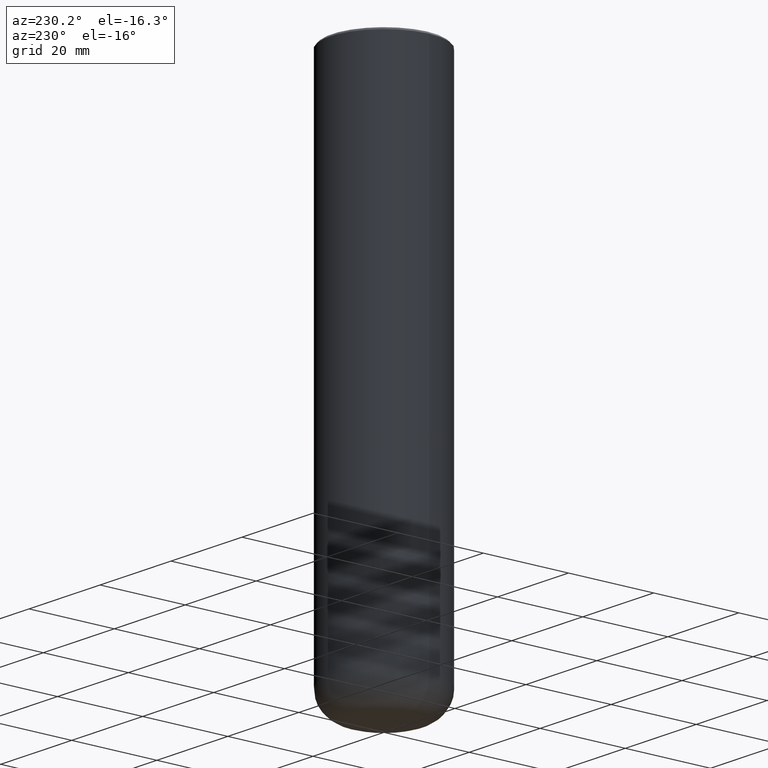
[diagram: clean part render]
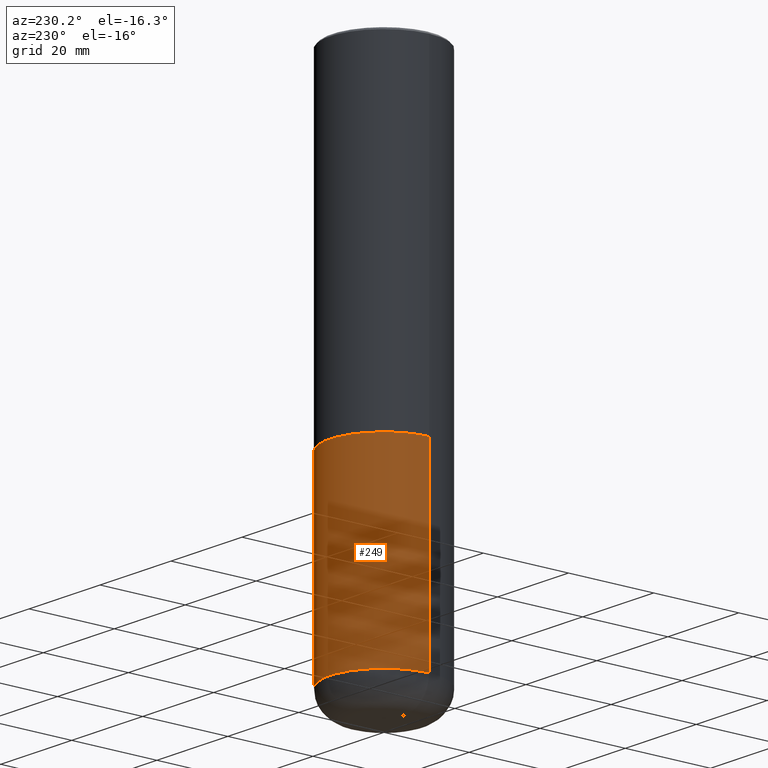
[diagram: same view with one face highlighted and labeled with its STEP entity id]
A machine part, auxiliary view. The second image highlights one B-rep face of the part: STEP entity #249.
In plain terms, the highlighted cylindrical surface (partial cylindrical patch) has radius 12.7 mm, axis along (-0, 0, 1).
Its self-contained STEP definition (entity closure, byte-faithful):
#5 = EDGE_CURVE ( 'NONE', #388, #153, #377, .T. ) ;
#15 = DIRECTION ( 'NONE',  ( -2.445468806185136877E-29, 3.491481338843145188E-15, 1.000000000000000000 ) ) ;
#24 = AXIS2_PLACEMENT_3D ( 'NONE', #327, #98, #253 ) ;
#47 = ORIENTED_EDGE ( 'NONE', *, *, #186, .F. ) ;
#49 = VERTEX_POINT ( 'NONE', #117 ) ;
#90 = ORIENTED_EDGE ( 'NONE', *, *, #5, .F. ) ;
#98 = DIRECTION ( 'NONE',  ( -2.445468806185136597E-29, 3.491481338843145583E-15, 1.000000000000000000 ) ) ;
#101 = CARTESIAN_POINT ( 'NONE',  ( -0.5000000000000000000, -9.976793127330550292E-15, -4.750009519233957533 ) ) ;
#115 = CARTESIAN_POINT ( 'NONE',  ( 0.5000000000000000000, -3.491481338843133355E-15, 2.438088387897967896E-29 ) ) ;
#117 = CARTESIAN_POINT ( 'NONE',  ( 0.5000000000000000000, -2.007605093457579787E-14, -4.750009519233957533 ) ) ;
#127 = CARTESIAN_POINT ( 'NONE',  ( -0.5000000000000000000, -9.976793127330550292E-15, -3.000000000000000444 ) ) ;
#129 = LINE ( 'NONE', #252, #248 ) ;
#147 = EDGE_CURVE ( 'NONE', #455, #153, #129, .T. ) ;
#153 = VERTEX_POINT ( 'NONE', #127 ) ;
#155 = ORIENTED_EDGE ( 'NONE', *, *, #147, .T. ) ;
#160 = CARTESIAN_POINT ( 'NONE',  ( 0.000000000000000000, 0.000000000000000000, 0.000000000000000000 ) ) ;
#180 = AXIS2_PLACEMENT_3D ( 'NONE', #344, #191, #457 ) ;
#186 = EDGE_CURVE ( 'NONE', #49, #388, #401, .T. ) ;
#191 = DIRECTION ( 'NONE',  ( -2.445468806185136597E-29, 3.491481338843145583E-15, 1.000000000000000000 ) ) ;
#192 = DIRECTION ( 'NONE',  ( -2.445468806185136597E-29, 3.491481338843145583E-15, 1.000000000000000000 ) ) ;
#196 = ORIENTED_EDGE ( 'NONE', *, *, #449, .T. ) ;
#218 = CARTESIAN_POINT ( 'NONE',  ( 0.5000000000000000000, -1.396592535537257129E-14, -3.000000000000000444 ) ) ;
#248 = VECTOR ( 'NONE', #470, 39.37007874015748143 ) ;
#249 = ADVANCED_FACE ( 'NONE', ( #458 ), #360, .T. ) ;
#252 = CARTESIAN_POINT ( 'NONE',  ( -0.5000000000000000000, 3.552713678800500929E-15, -2.459467545127452891E-29 ) ) ;
#253 = DIRECTION ( 'NONE',  ( 1.000000000000000000, -6.982962677686266711E-15, 0.000000000000000000 ) ) ;
#314 = EDGE_LOOP ( 'NONE', ( #196, #155, #90, #47 ) ) ;
#327 = CARTESIAN_POINT ( 'NONE',  ( 1.161600010836909978E-28, -1.658456959573266451E-14, -4.750009519233957533 ) ) ;
#331 = CIRCLE ( 'NONE', #24, 0.5000000000000000000 ) ;
#344 = CARTESIAN_POINT ( 'NONE',  ( 7.336406418555409790E-29, -1.047444401652943635E-14, -3.000000000000000444 ) ) ;
#354 = DIRECTION ( 'NONE',  ( 1.000000000000000000, -6.982962677686266711E-15, 4.876176775795935793E-29 ) ) ;
#360 = CYLINDRICAL_SURFACE ( 'NONE', #400, 0.5000000000000000000 ) ;
#377 = CIRCLE ( 'NONE', #180, 0.5000000000000000000 ) ;
#388 = VERTEX_POINT ( 'NONE', #218 ) ;
#400 = AXIS2_PLACEMENT_3D ( 'NONE', #160, #192, #354 ) ;
#401 = LINE ( 'NONE', #115, #423 ) ;
#423 = VECTOR ( 'NONE', #15, 39.37007874015748143 ) ;
#449 = EDGE_CURVE ( 'NONE', #49, #455, #331, .T. ) ;
#455 = VERTEX_POINT ( 'NONE', #101 ) ;
#457 = DIRECTION ( 'NONE',  ( 1.000000000000000000, -6.982962677686266711E-15, 0.000000000000000000 ) ) ;
#458 = FACE_OUTER_BOUND ( 'NONE', #314, .T. ) ;
#470 = DIRECTION ( 'NONE',  ( -2.445468806185136877E-29, 3.491481338843145188E-15, 1.000000000000000000 ) ) ;